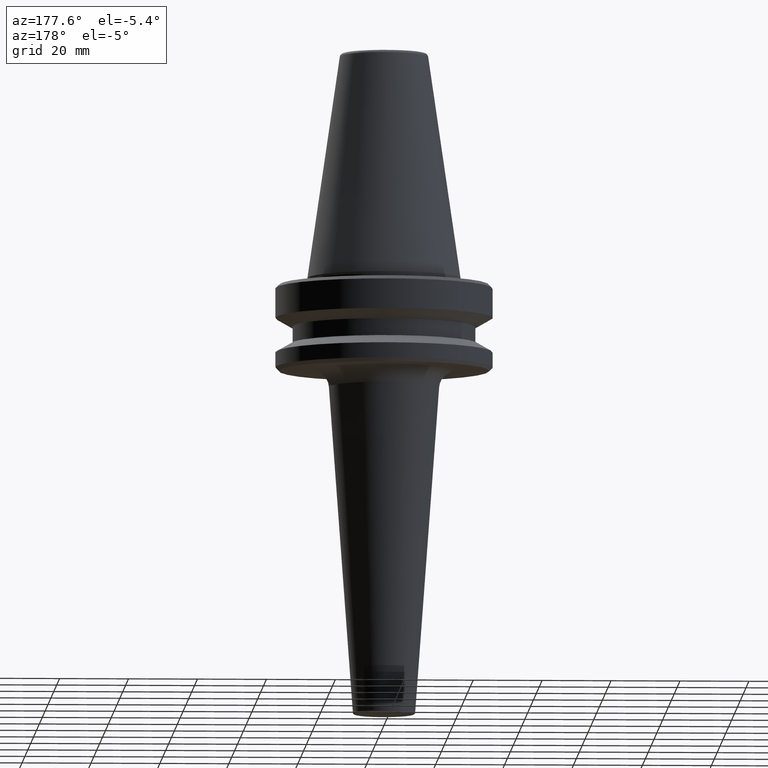
[diagram: clean part render]
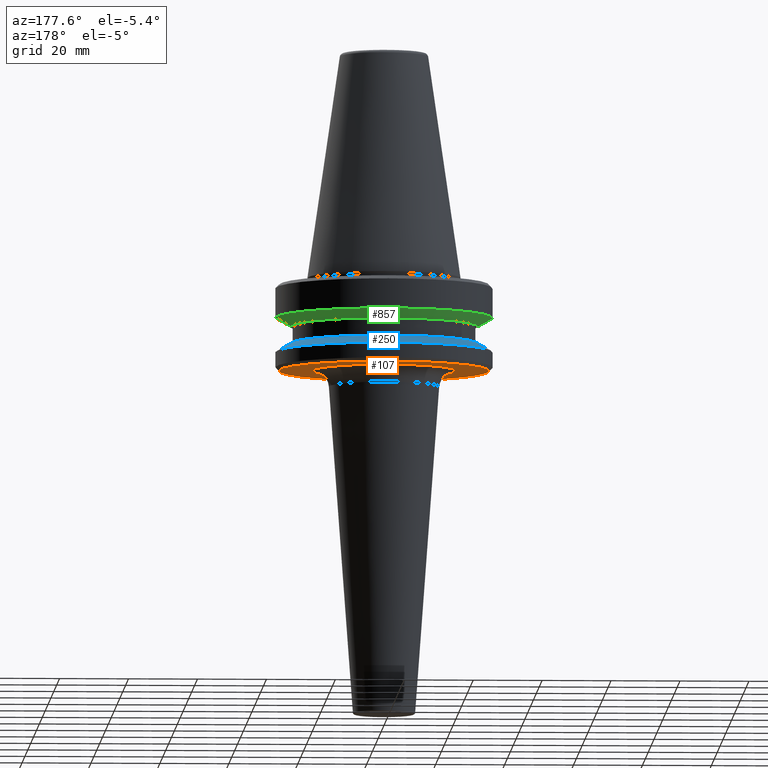
[diagram: same view with three faces highlighted in distinct colors, each labeled with its STEP entity id]
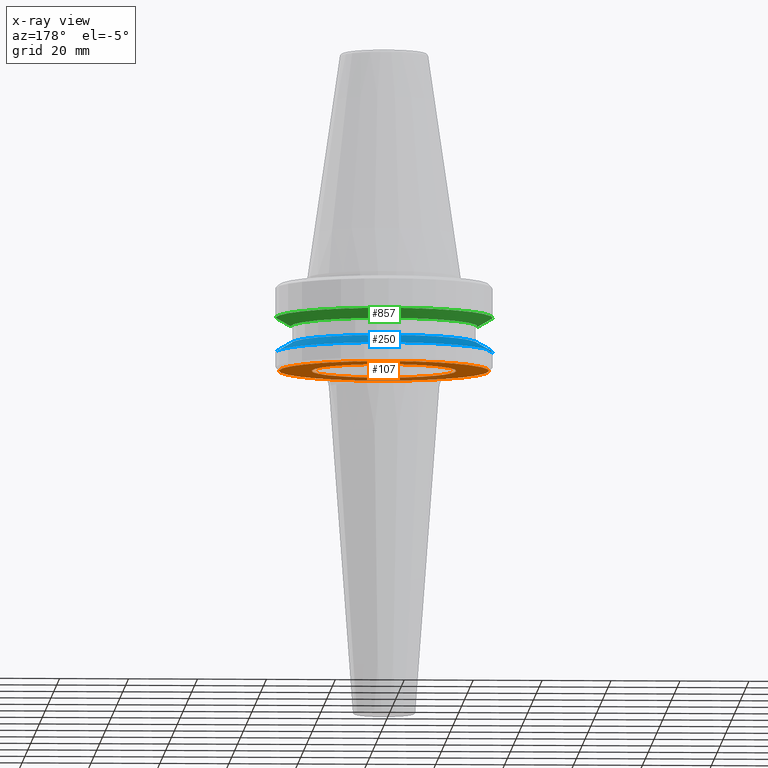
[diagram: x-ray of the same camera — body ghosted, the three highlighted faces saturated]
A machine part, auxiliary view with three faces highlighted in distinct colors.
The next image is the same camera in x-ray (body ghosted, the three faces saturated) — at least one of them is partly hidden behind the body in this view.
Their STEP definitions:

[orange] entity #107 — the highlighted planar face has unit normal (0, -0, 1).
#32 = DIRECTION ( 'NONE',  ( 1.000000000000000000, 0.0000000000000000000, 0.0000000000000000000 ) ) ;
#39 = CIRCLE ( 'NONE', #434, 30.49999999999241900 ) ;
#67 = EDGE_CURVE ( 'NONE', #274, #921, #635, .T. ) ;
#97 = EDGE_CURVE ( 'NONE', #921, #274, #422, .T. ) ;
#107 = ADVANCED_FACE ( 'NONE', ( #1035, #825 ), #116, .F. ) ;
#108 = VERTEX_POINT ( 'NONE', #328 ) ;
#116 = PLANE ( 'NONE',  #640 ) ;
#122 = DIRECTION ( 'NONE',  ( -0.0000000000000000000, -0.0000000000000000000, 1.000000000000000000 ) ) ;
#135 = ORIENTED_EDGE ( 'NONE', *, *, #617, .F. ) ;
#137 = CARTESIAN_POINT ( 'NONE',  ( 0.0000000000000000000, 0.0000000000000000000, -92.40000000000803500 ) ) ;
#163 = EDGE_CURVE ( 'NONE', #108, #971, #589, .T. ) ;
#195 = EDGE_LOOP ( 'NONE', ( #135, #539 ) ) ;
#208 = CARTESIAN_POINT ( 'NONE',  ( -20.98658476879180800, 2.570115386213548200E-015, -92.40000000000806300 ) ) ;
#261 = AXIS2_PLACEMENT_3D ( 'NONE', #923, #850, #595 ) ;
#274 = VERTEX_POINT ( 'NONE', #208 ) ;
#324 = CARTESIAN_POINT ( 'NONE',  ( 30.49999999999241900, 0.0000000000000000000, -92.40000000000803500 ) ) ;
#328 = CARTESIAN_POINT ( 'NONE',  ( -30.49999999999241900, 3.796405077356336000E-015, -92.40000000000803500 ) ) ;
#373 = ORIENTED_EDGE ( 'NONE', *, *, #97, .T. ) ;
#413 = CARTESIAN_POINT ( 'NONE',  ( 0.0000000000000000000, 0.0000000000000000000, -92.40000000000804900 ) ) ;
#422 = CIRCLE ( 'NONE', #424, 20.98658476879180800 ) ;
#424 = AXIS2_PLACEMENT_3D ( 'NONE', #413, #575, #810 ) ;
#434 = AXIS2_PLACEMENT_3D ( 'NONE', #649, #122, #638 ) ;
#539 = ORIENTED_EDGE ( 'NONE', *, *, #163, .F. ) ;
#555 = CARTESIAN_POINT ( 'NONE',  ( 20.98658476879180800, 0.0000000000000000000, -92.40000000000806300 ) ) ;
#556 = ORIENTED_EDGE ( 'NONE', *, *, #67, .T. ) ;
#575 = DIRECTION ( 'NONE',  ( -0.0000000000000000000, -0.0000000000000000000, 1.000000000000000000 ) ) ;
#589 = CIRCLE ( 'NONE', #741, 30.49999999999241900 ) ;
#595 = DIRECTION ( 'NONE',  ( 1.000000000000000000, 0.0000000000000000000, 0.0000000000000000000 ) ) ;
#617 = EDGE_CURVE ( 'NONE', #971, #108, #39, .T. ) ;
#635 = CIRCLE ( 'NONE', #261, 20.98658476879180800 ) ;
#638 = DIRECTION ( 'NONE',  ( 1.000000000000000000, 0.0000000000000000000, 0.0000000000000000000 ) ) ;
#640 = AXIS2_PLACEMENT_3D ( 'NONE', #890, #968, #32 ) ;
#649 = CARTESIAN_POINT ( 'NONE',  ( 0.0000000000000000000, 0.0000000000000000000, -92.40000000000803500 ) ) ;
#696 = DIRECTION ( 'NONE',  ( -0.0000000000000000000, -0.0000000000000000000, 1.000000000000000000 ) ) ;
#741 = AXIS2_PLACEMENT_3D ( 'NONE', #137, #696, #963 ) ;
#810 = DIRECTION ( 'NONE',  ( 1.000000000000000000, 0.0000000000000000000, 0.0000000000000000000 ) ) ;
#825 = FACE_BOUND ( 'NONE', #946, .T. ) ;
#850 = DIRECTION ( 'NONE',  ( -0.0000000000000000000, -0.0000000000000000000, 1.000000000000000000 ) ) ;
#890 = CARTESIAN_POINT ( 'NONE',  ( 0.0000000000000000000, 1.347894065673340400E-013, -92.40000000000803500 ) ) ;
#921 = VERTEX_POINT ( 'NONE', #555 ) ;
#923 = CARTESIAN_POINT ( 'NONE',  ( 0.0000000000000000000, 0.0000000000000000000, -92.40000000000804900 ) ) ;
#946 = EDGE_LOOP ( 'NONE', ( #373, #556 ) ) ;
#963 = DIRECTION ( 'NONE',  ( 1.000000000000000000, 0.0000000000000000000, 0.0000000000000000000 ) ) ;
#968 = DIRECTION ( 'NONE',  ( 0.0000000000000000000, -0.0000000000000000000, 1.000000000000000000 ) ) ;
#971 = VERTEX_POINT ( 'NONE', #324 ) ;
#1035 = FACE_OUTER_BOUND ( 'NONE', #195, .T. ) ;

[blue] entity #250 — the highlighted conical surface has half-angle 60 deg.
#4 = VERTEX_POINT ( 'NONE', #896 ) ;
#13 = CIRCLE ( 'NONE', #547, 31.50000000000008500 ) ;
#28 = CARTESIAN_POINT ( 'NONE',  ( 0.0000000000000000000, 0.0000000000000000000, -87.00014200631733300 ) ) ;
#77 = AXIS2_PLACEMENT_3D ( 'NONE', #28, #766, #164 ) ;
#79 = CARTESIAN_POINT ( 'NONE',  ( -31.50000000000008500, 0.0000000000000000000, -87.00014200631733300 ) ) ;
#91 = DIRECTION ( 'NONE',  ( -0.0000000000000000000, -0.0000000000000000000, 1.000000000000000000 ) ) ;
#132 = DIRECTION ( 'NONE',  ( -0.0000000000000000000, -0.0000000000000000000, 1.000000000000000000 ) ) ;
#139 = CARTESIAN_POINT ( 'NONE',  ( 0.0000000000000000000, 0.0000000000000000000, -87.00014200631733300 ) ) ;
#141 = ORIENTED_EDGE ( 'NONE', *, *, #626, .T. ) ;
#158 = VECTOR ( 'NONE', #385, 1000.000000000000000 ) ;
#164 = DIRECTION ( 'NONE',  ( -1.000000000000000000, 0.0000000000000000000, 0.0000000000000000000 ) ) ;
#173 = EDGE_CURVE ( 'NONE', #4, #183, #799, .T. ) ;
#175 = CARTESIAN_POINT ( 'NONE',  ( 31.50000000000008500, 3.857637417314172900E-015, -87.00014200631733300 ) ) ;
#183 = VERTEX_POINT ( 'NONE', #894 ) ;
#219 = DIRECTION ( 'NONE',  ( 1.000000000000000000, 0.0000000000000000000, 0.0000000000000000000 ) ) ;
#226 = VERTEX_POINT ( 'NONE', #402 ) ;
#250 = ADVANCED_FACE ( 'NONE', ( #505 ), #481, .T. ) ;
#385 = DIRECTION ( 'NONE',  ( -0.8660254037844332700, 0.0000000000000000000, -0.5000000000000093300 ) ) ;
#402 = CARTESIAN_POINT ( 'NONE',  ( -31.50000000000008500, 3.857637417314172900E-015, -87.00014200631733300 ) ) ;
#423 = EDGE_CURVE ( 'NONE', #4, #596, #1018, .T. ) ;
#442 = CARTESIAN_POINT ( 'NONE',  ( 31.50000000000008500, 0.0000000000000000000, -87.00014200631733300 ) ) ;
#481 = CONICAL_SURFACE ( 'NONE', #77, 31.50000000000008500, 1.047197551196587000 ) ;
#486 = ORIENTED_EDGE ( 'NONE', *, *, #423, .T. ) ;
#505 = FACE_OUTER_BOUND ( 'NONE', #760, .T. ) ;
#547 = AXIS2_PLACEMENT_3D ( 'NONE', #139, #132, #660 ) ;
#567 = ORIENTED_EDGE ( 'NONE', *, *, #173, .F. ) ;
#574 = ORIENTED_EDGE ( 'NONE', *, *, #752, .F. ) ;
#596 = VERTEX_POINT ( 'NONE', #442 ) ;
#626 = EDGE_CURVE ( 'NONE', #596, #226, #13, .T. ) ;
#660 = DIRECTION ( 'NONE',  ( 1.000000000000000000, 0.0000000000000000000, 0.0000000000000000000 ) ) ;
#752 = EDGE_CURVE ( 'NONE', #183, #226, #822, .T. ) ;
#760 = EDGE_LOOP ( 'NONE', ( #567, #486, #141, #574 ) ) ;
#766 = DIRECTION ( 'NONE',  ( 0.0000000000000000000, 0.0000000000000000000, -1.000000000000000000 ) ) ;
#767 = DIRECTION ( 'NONE',  ( 0.8660254037844332700, 1.060575238724900300E-016, -0.5000000000000093300 ) ) ;
#799 = CIRCLE ( 'NONE', #801, 27.16962701892256100 ) ;
#801 = AXIS2_PLACEMENT_3D ( 'NONE', #816, #91, #219 ) ;
#816 = CARTESIAN_POINT ( 'NONE',  ( 0.0000000000000000000, 0.0000000000000000000, -84.50000000000068200 ) ) ;
#822 = LINE ( 'NONE', #79, #158 ) ;
#894 = CARTESIAN_POINT ( 'NONE',  ( -27.16962701892256100, 0.0000000000000000000, -84.50000000000068200 ) ) ;
#896 = CARTESIAN_POINT ( 'NONE',  ( 27.16962701892256100, 3.592478546794633900E-015, -84.50000000000068200 ) ) ;
#1002 = VECTOR ( 'NONE', #767, 1000.000000000000000 ) ;
#1018 = LINE ( 'NONE', #175, #1002 ) ;

[green] entity #857 — the highlighted conical surface has half-angle 60 deg.
#3 = CARTESIAN_POINT ( 'NONE',  ( -31.50000000000008500, 3.857637417314172900E-015, -76.99985799368391800 ) ) ;
#9 = EDGE_CURVE ( 'NONE', #932, #112, #900, .T. ) ;
#14 = CIRCLE ( 'NONE', #736, 31.50000000000008500 ) ;
#78 = ORIENTED_EDGE ( 'NONE', *, *, #997, .F. ) ;
#112 = VERTEX_POINT ( 'NONE', #1033 ) ;
#187 = VERTEX_POINT ( 'NONE', #3 ) ;
#188 = CARTESIAN_POINT ( 'NONE',  ( -31.50000000000008500, 3.857637417314172900E-015, -76.99985799368391800 ) ) ;
#214 = DIRECTION ( 'NONE',  ( 0.8660254037844383700, 0.0000000000000000000, 0.5000000000000003300 ) ) ;
#217 = CONICAL_SURFACE ( 'NONE', #634, 31.50000000000008500, 1.047197551196597400 ) ;
#264 = FACE_OUTER_BOUND ( 'NONE', #942, .T. ) ;
#307 = ORIENTED_EDGE ( 'NONE', *, *, #428, .T. ) ;
#341 = DIRECTION ( 'NONE',  ( 1.000000000000000000, 0.0000000000000000000, 0.0000000000000000000 ) ) ;
#353 = LINE ( 'NONE', #414, #966 ) ;
#367 = VECTOR ( 'NONE', #605, 1000.000000000000100 ) ;
#411 = CARTESIAN_POINT ( 'NONE',  ( 27.16962701892322600, 0.0000000000000000000, -79.50000000000012800 ) ) ;
#414 = CARTESIAN_POINT ( 'NONE',  ( 31.50000000000008500, 0.0000000000000000000, -76.99985799368391800 ) ) ;
#428 = EDGE_CURVE ( 'NONE', #112, #187, #584, .T. ) ;
#436 = DIRECTION ( 'NONE',  ( 1.000000000000000000, 0.0000000000000000000, 0.0000000000000000000 ) ) ;
#450 = AXIS2_PLACEMENT_3D ( 'NONE', #625, #661, #341 ) ;
#516 = ORIENTED_EDGE ( 'NONE', *, *, #9, .T. ) ;
#543 = ORIENTED_EDGE ( 'NONE', *, *, #886, .F. ) ;
#546 = VERTEX_POINT ( 'NONE', #622 ) ;
#563 = CARTESIAN_POINT ( 'NONE',  ( 0.0000000000000000000, 0.0000000000000000000, -76.99985799368391800 ) ) ;
#584 = LINE ( 'NONE', #188, #367 ) ;
#605 = DIRECTION ( 'NONE',  ( -0.8660254037844383700, 1.060575238724906500E-016, 0.5000000000000003300 ) ) ;
#622 = CARTESIAN_POINT ( 'NONE',  ( 31.50000000000008500, 0.0000000000000000000, -76.99985799368391800 ) ) ;
#625 = CARTESIAN_POINT ( 'NONE',  ( 0.0000000000000000000, 0.0000000000000000000, -79.50000000000012800 ) ) ;
#634 = AXIS2_PLACEMENT_3D ( 'NONE', #563, #719, #899 ) ;
#661 = DIRECTION ( 'NONE',  ( -0.0000000000000000000, -0.0000000000000000000, 1.000000000000000000 ) ) ;
#719 = DIRECTION ( 'NONE',  ( -0.0000000000000000000, -0.0000000000000000000, 1.000000000000000000 ) ) ;
#736 = AXIS2_PLACEMENT_3D ( 'NONE', #979, #996, #436 ) ;
#857 = ADVANCED_FACE ( 'NONE', ( #264 ), #217, .T. ) ;
#886 = EDGE_CURVE ( 'NONE', #546, #187, #14, .T. ) ;
#899 = DIRECTION ( 'NONE',  ( 1.000000000000000000, 0.0000000000000000000, 0.0000000000000000000 ) ) ;
#900 = CIRCLE ( 'NONE', #450, 27.16962701892322600 ) ;
#932 = VERTEX_POINT ( 'NONE', #411 ) ;
#942 = EDGE_LOOP ( 'NONE', ( #516, #307, #543, #78 ) ) ;
#966 = VECTOR ( 'NONE', #214, 1000.000000000000100 ) ;
#979 = CARTESIAN_POINT ( 'NONE',  ( 0.0000000000000000000, 0.0000000000000000000, -76.99985799368391800 ) ) ;
#996 = DIRECTION ( 'NONE',  ( -0.0000000000000000000, -0.0000000000000000000, 1.000000000000000000 ) ) ;
#997 = EDGE_CURVE ( 'NONE', #932, #546, #353, .T. ) ;
#1033 = CARTESIAN_POINT ( 'NONE',  ( -27.16962701892322600, 3.592478546794674900E-015, -79.50000000000012800 ) ) ;